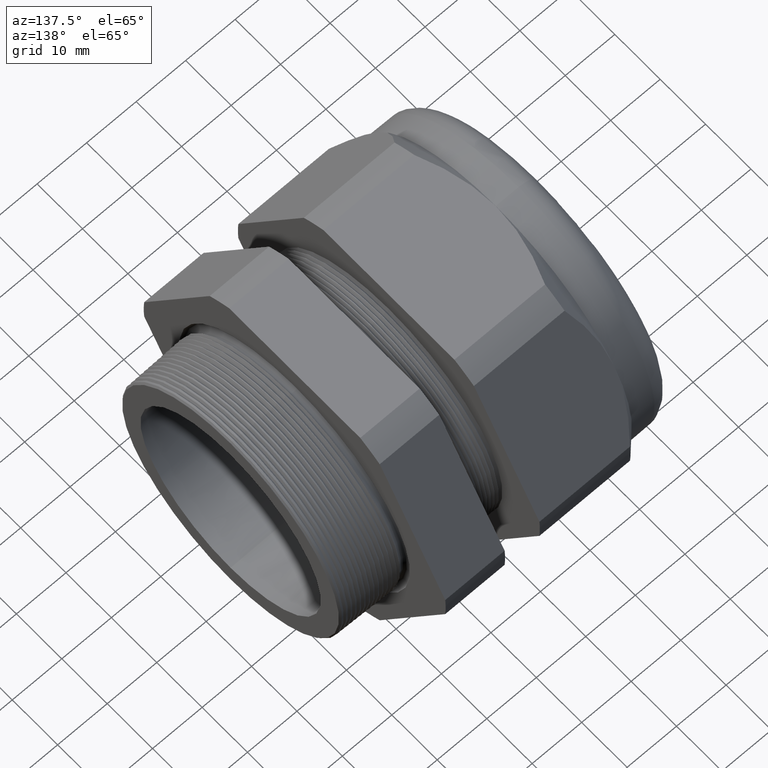
[diagram: clean part render]
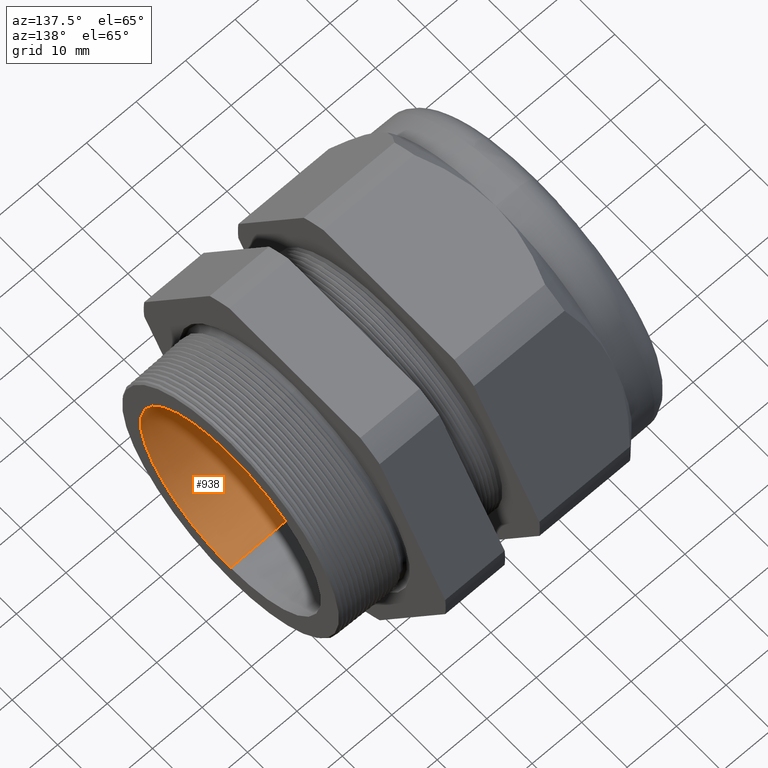
[diagram: same view with one face highlighted and labeled with its STEP entity id]
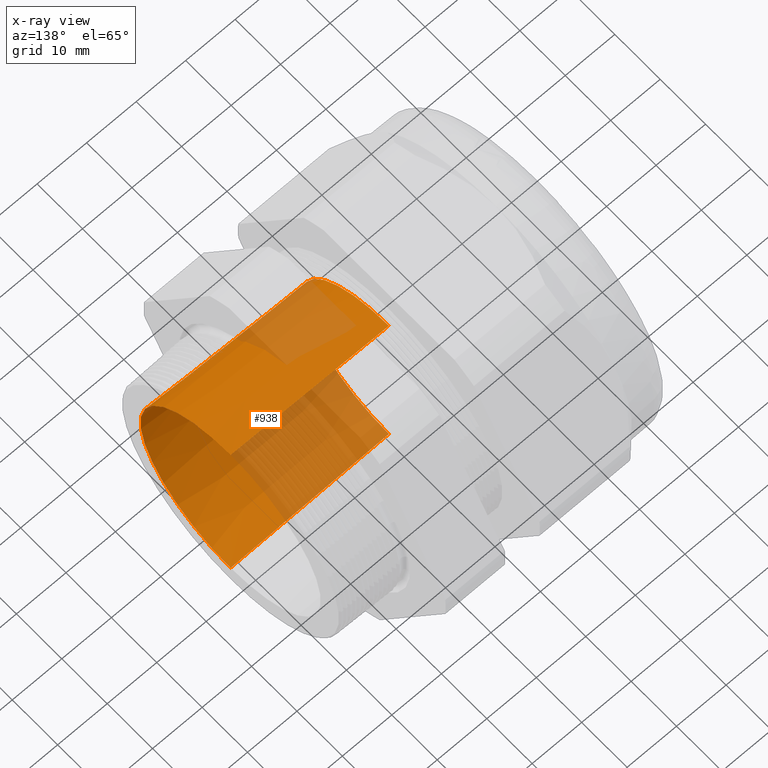
[diagram: x-ray of the same camera — body ghosted, the highlighted face saturated]
A machine part, auxiliary view. The second image highlights one B-rep face of the part: STEP entity #938.
The next image is the same camera in x-ray: the body ghosted, the highlighted face saturated — about 40% of this face is hidden behind the body in this view.
In plain terms, the highlighted conical surface has half-angle 1.458 deg.
Its self-contained STEP definition (entity closure, byte-faithful):
#889 = VERTEX_POINT ( 'NONE', #3239 ) ;
#890 = EDGE_LOOP ( 'NONE', ( #939, #940, #1019, #991 ) ) ;
#938 = ADVANCED_FACE ( 'NONE', ( #3336 ), #3334, .F. ) ;
#939 = ORIENTED_EDGE ( 'NONE', *, *, #974, .F. ) ;
#940 = ORIENTED_EDGE ( 'NONE', *, *, #941, .T. ) ;
#941 = EDGE_CURVE ( 'NONE', #972, #942, #3335, .T. ) ;
#942 = VERTEX_POINT ( 'NONE', #3389 ) ;
#972 = VERTEX_POINT ( 'NONE', #3392 ) ;
#974 = EDGE_CURVE ( 'NONE', #972, #889, #3391, .T. ) ;
#991 = ORIENTED_EDGE ( 'NONE', *, *, #1016, .F. ) ;
#1015 = VERTEX_POINT ( 'NONE', #3500 ) ;
#1016 = EDGE_CURVE ( 'NONE', #889, #1015, #3499, .T. ) ;
#1019 = ORIENTED_EDGE ( 'NONE', *, *, #1031, .T. ) ;
#1031 = EDGE_CURVE ( 'NONE', #942, #1015, #3541, .T. ) ;
#3239 = CARTESIAN_POINT ( 'NONE',  ( -1.058802799999999800, 0.0000000000000000000, -0.7499999999999998900 ) ) ;
#3328 = VECTOR ( 'NONE', #3390, 39.37007874015748100 ) ;
#3329 = CARTESIAN_POINT ( 'NONE',  ( -1.058802799999999800, 9.184850993605147200E-017, 0.7499999999999998900 ) ) ;
#3330 = DIRECTION ( 'NONE',  ( 0.0000000000000000000, 0.0000000000000000000, -1.000000000000000000 ) ) ;
#3331 = DIRECTION ( 'NONE',  ( 1.000000000000000000, 0.0000000000000000000, 0.0000000000000000000 ) ) ;
#3332 = CARTESIAN_POINT ( 'NONE',  ( -1.058802799999999800, 0.0000000000000000000, 0.0000000000000000000 ) ) ;
#3333 = AXIS2_PLACEMENT_3D ( 'NONE', #3332, #3331, #3330 ) ;
#3334 = CONICAL_SURFACE ( 'NONE', #3333, 0.7499999999999998900, 0.02544494993204041800 ) ;
#3335 = LINE ( 'NONE', #3329, #3328 ) ;
#3336 = FACE_OUTER_BOUND ( 'NONE', #890, .T. ) ;
#3389 = CARTESIAN_POINT ( 'NONE',  ( 0.2000000000000000400, 9.577192173784686800E-017, 0.7820370886081360300 ) ) ;
#3390 = DIRECTION ( 'NONE',  ( 0.9996762947271695700, 3.115771408124983900E-018, 0.02544220431796584400 ) ) ;
#3391 = CIRCLE ( 'NONE', #3455, 0.7499999999999998900 ) ;
#3392 = CARTESIAN_POINT ( 'NONE',  ( -1.058802799999999800, 9.381021583694917600E-017, 0.7499999999999998900 ) ) ;
#3452 = DIRECTION ( 'NONE',  ( 0.0000000000000000000, 0.0000000000000000000, -1.000000000000000000 ) ) ;
#3453 = DIRECTION ( 'NONE',  ( 1.000000000000000000, 0.0000000000000000000, 0.0000000000000000000 ) ) ;
#3454 = CARTESIAN_POINT ( 'NONE',  ( -1.058802799999999800, 0.0000000000000000000, 0.0000000000000000000 ) ) ;
#3455 = AXIS2_PLACEMENT_3D ( 'NONE', #3454, #3453, #3452 ) ;
#3496 = DIRECTION ( 'NONE',  ( 0.9996762947271695700, 0.0000000000000000000, -0.02544220431796584400 ) ) ;
#3497 = VECTOR ( 'NONE', #3496, 39.37007874015748100 ) ;
#3498 = CARTESIAN_POINT ( 'NONE',  ( -1.058802799999999800, 0.0000000000000000000, -0.7499999999999998900 ) ) ;
#3499 = LINE ( 'NONE', #3498, #3497 ) ;
#3500 = CARTESIAN_POINT ( 'NONE',  ( 0.2000000000000000400, 0.0000000000000000000, -0.7820370886081360300 ) ) ;
#3538 = DIRECTION ( 'NONE',  ( 0.0000000000000000000, 0.0000000000000000000, -1.000000000000000000 ) ) ;
#3539 = DIRECTION ( 'NONE',  ( 1.000000000000000000, 0.0000000000000000000, 0.0000000000000000000 ) ) ;
#3540 = AXIS2_PLACEMENT_3D ( 'NONE', #3545, #3539, #3538 ) ;
#3541 = CIRCLE ( 'NONE', #3540, 0.7820370886081360300 ) ;
#3545 = CARTESIAN_POINT ( 'NONE',  ( 0.2000000000000000400, 0.0000000000000000000, 0.0000000000000000000 ) ) ;